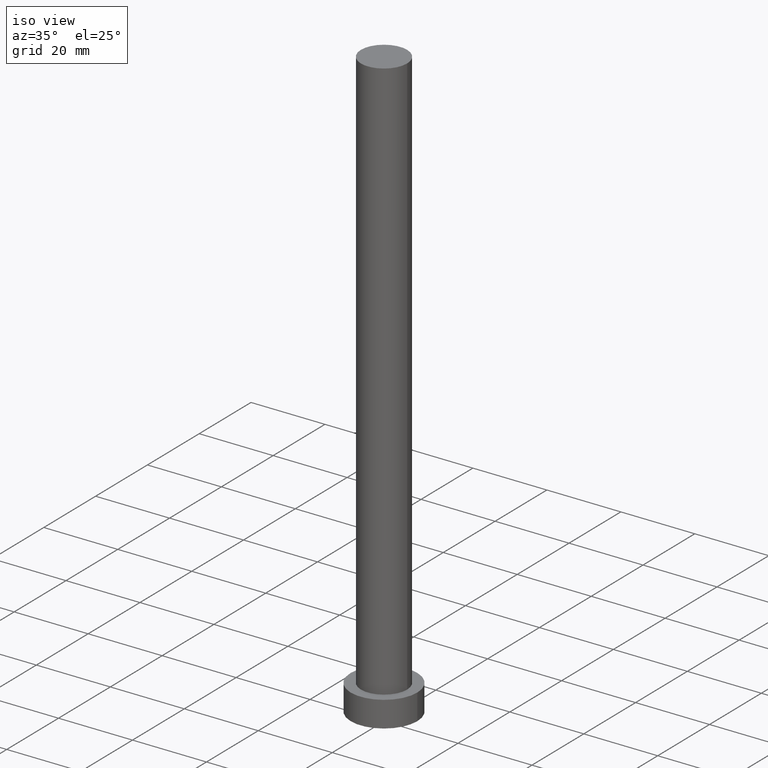
[diagram: clean part render]
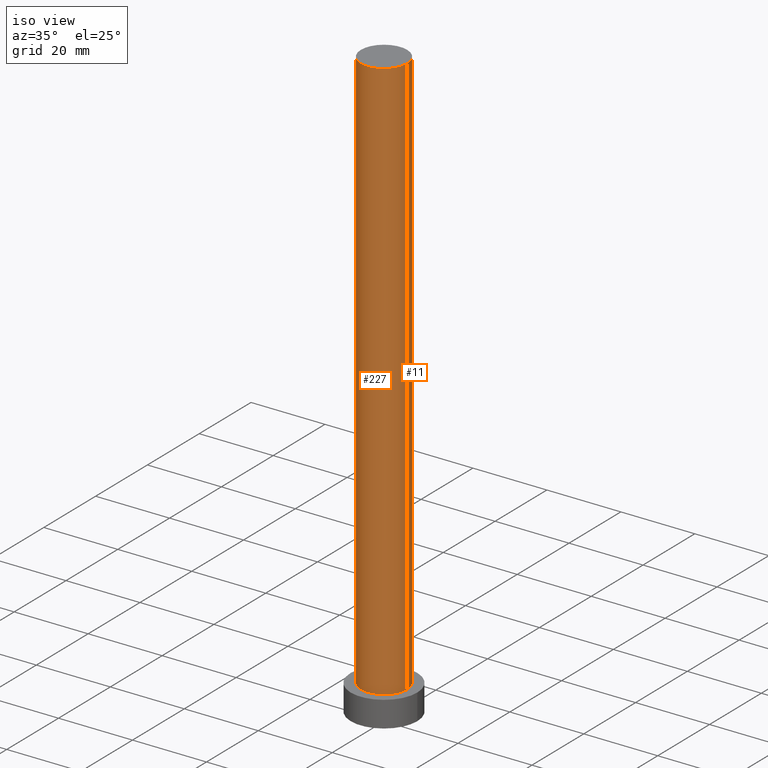
[diagram: same view with one multi-face feature highlighted, each face labeled with its STEP entity id]
A machine part, iso view. The highlighted faces form ONE feature: a constant-radius fillet chain: 2 tangent blend faces with common blend radius 6.25 mm. The faces share edges in the B-rep.
Their STEP definitions:
[1] entity #11 (Cylinder):
#3 = CARTESIAN_POINT ( 'NONE',  ( 6.250000000000000000, 7.654042494670957606E-16, 160.0000000000000000 ) ) ;
#10 = CYLINDRICAL_SURFACE ( 'NONE', #90, 6.250000000000000000 ) ;
#11 = ADVANCED_FACE ( 'NONE', ( #65 ), #10, .T. ) ;
#22 = CARTESIAN_POINT ( 'NONE',  ( -6.250000000000000000, 0.000000000000000000, 160.0000000000000000 ) ) ;
#25 = CIRCLE ( 'NONE', #55, 6.250000000000000000 ) ;
#26 = ORIENTED_EDGE ( 'NONE', *, *, #128, .F. ) ;
#30 = LINE ( 'NONE', #251, #45 ) ;
#33 = LINE ( 'NONE', #193, #123 ) ;
#34 = DIRECTION ( 'NONE',  ( 0.000000000000000000, 0.000000000000000000, 1.000000000000000000 ) ) ;
#45 = VECTOR ( 'NONE', #73, 1000.000000000000000 ) ;
#55 = AXIS2_PLACEMENT_3D ( 'NONE', #148, #34, #129 ) ;
#65 = FACE_OUTER_BOUND ( 'NONE', #78, .T. ) ;
#73 = DIRECTION ( 'NONE',  ( -0.000000000000000000, -0.000000000000000000, -1.000000000000000000 ) ) ;
#74 = VERTEX_POINT ( 'NONE', #189 ) ;
#75 = EDGE_CURVE ( 'NONE', #200, #74, #33, .T. ) ;
#78 = EDGE_LOOP ( 'NONE', ( #115, #155, #141, #26 ) ) ;
#79 = EDGE_CURVE ( 'NONE', #74, #195, #223, .T. ) ;
#87 = EDGE_CURVE ( 'NONE', #200, #243, #25, .T. ) ;
#90 = AXIS2_PLACEMENT_3D ( 'NONE', #105, #199, #201 ) ;
#94 = CARTESIAN_POINT ( 'NONE',  ( -6.250000000000000000, 0.000000000000000000, 7.000000000000000000 ) ) ;
#96 = DIRECTION ( 'NONE',  ( 1.000000000000000000, 0.000000000000000000, 0.000000000000000000 ) ) ;
#105 = CARTESIAN_POINT ( 'NONE',  ( 0.000000000000000000, 0.000000000000000000, 160.0000000000000000 ) ) ;
#115 = ORIENTED_EDGE ( 'NONE', *, *, #87, .F. ) ;
#123 = VECTOR ( 'NONE', #131, 1000.000000000000000 ) ;
#128 = EDGE_CURVE ( 'NONE', #243, #195, #30, .T. ) ;
#129 = DIRECTION ( 'NONE',  ( 1.000000000000000000, 0.000000000000000000, 0.000000000000000000 ) ) ;
#131 = DIRECTION ( 'NONE',  ( -0.000000000000000000, -0.000000000000000000, -1.000000000000000000 ) ) ;
#141 = ORIENTED_EDGE ( 'NONE', *, *, #79, .T. ) ;
#148 = CARTESIAN_POINT ( 'NONE',  ( 0.000000000000000000, 0.000000000000000000, 160.0000000000000000 ) ) ;
#155 = ORIENTED_EDGE ( 'NONE', *, *, #75, .T. ) ;
#168 = CARTESIAN_POINT ( 'NONE',  ( 0.000000000000000000, 0.000000000000000000, 7.000000000000000000 ) ) ;
#189 = CARTESIAN_POINT ( 'NONE',  ( 6.250000000000000000, 7.654042494670957606E-16, 7.000000000000000000 ) ) ;
#193 = CARTESIAN_POINT ( 'NONE',  ( 6.250000000000000000, 7.654042494670957606E-16, 160.0000000000000000 ) ) ;
#195 = VERTEX_POINT ( 'NONE', #94 ) ;
#199 = DIRECTION ( 'NONE',  ( -0.000000000000000000, -0.000000000000000000, -1.000000000000000000 ) ) ;
#200 = VERTEX_POINT ( 'NONE', #3 ) ;
#201 = DIRECTION ( 'NONE',  ( -1.000000000000000000, 0.000000000000000000, 0.000000000000000000 ) ) ;
#223 = CIRCLE ( 'NONE', #249, 6.250000000000000000 ) ;
#234 = DIRECTION ( 'NONE',  ( 0.000000000000000000, 0.000000000000000000, 1.000000000000000000 ) ) ;
#243 = VERTEX_POINT ( 'NONE', #22 ) ;
#249 = AXIS2_PLACEMENT_3D ( 'NONE', #168, #234, #96 ) ;
#251 = CARTESIAN_POINT ( 'NONE',  ( -6.250000000000000000, 0.000000000000000000, 160.0000000000000000 ) ) ;
[2] entity #227 (Cylinder):
#3 = CARTESIAN_POINT ( 'NONE',  ( 6.250000000000000000, 7.654042494670957606E-16, 160.0000000000000000 ) ) ;
#8 = ORIENTED_EDGE ( 'NONE', *, *, #217, .F. ) ;
#19 = CARTESIAN_POINT ( 'NONE',  ( 0.000000000000000000, 0.000000000000000000, 7.000000000000000000 ) ) ;
#22 = CARTESIAN_POINT ( 'NONE',  ( -6.250000000000000000, 0.000000000000000000, 160.0000000000000000 ) ) ;
#27 = CIRCLE ( 'NONE', #173, 6.250000000000000000 ) ;
#30 = LINE ( 'NONE', #251, #45 ) ;
#33 = LINE ( 'NONE', #193, #123 ) ;
#45 = VECTOR ( 'NONE', #73, 1000.000000000000000 ) ;
#48 = DIRECTION ( 'NONE',  ( 0.000000000000000000, 0.000000000000000000, 1.000000000000000000 ) ) ;
#49 = DIRECTION ( 'NONE',  ( -1.000000000000000000, 0.000000000000000000, 0.000000000000000000 ) ) ;
#62 = ORIENTED_EDGE ( 'NONE', *, *, #75, .F. ) ;
#71 = DIRECTION ( 'NONE',  ( 0.000000000000000000, 0.000000000000000000, 1.000000000000000000 ) ) ;
#73 = DIRECTION ( 'NONE',  ( -0.000000000000000000, -0.000000000000000000, -1.000000000000000000 ) ) ;
#74 = VERTEX_POINT ( 'NONE', #189 ) ;
#75 = EDGE_CURVE ( 'NONE', #200, #74, #33, .T. ) ;
#94 = CARTESIAN_POINT ( 'NONE',  ( -6.250000000000000000, 0.000000000000000000, 7.000000000000000000 ) ) ;
#120 = ORIENTED_EDGE ( 'NONE', *, *, #128, .T. ) ;
#123 = VECTOR ( 'NONE', #131, 1000.000000000000000 ) ;
#128 = EDGE_CURVE ( 'NONE', #243, #195, #30, .T. ) ;
#130 = CIRCLE ( 'NONE', #209, 6.250000000000000000 ) ;
#131 = DIRECTION ( 'NONE',  ( -0.000000000000000000, -0.000000000000000000, -1.000000000000000000 ) ) ;
#138 = FACE_OUTER_BOUND ( 'NONE', #181, .T. ) ;
#154 = DIRECTION ( 'NONE',  ( -0.000000000000000000, -0.000000000000000000, -1.000000000000000000 ) ) ;
#164 = AXIS2_PLACEMENT_3D ( 'NONE', #188, #154, #49 ) ;
#169 = ORIENTED_EDGE ( 'NONE', *, *, #182, .T. ) ;
#173 = AXIS2_PLACEMENT_3D ( 'NONE', #19, #48, #213 ) ;
#181 = EDGE_LOOP ( 'NONE', ( #62, #8, #120, #169 ) ) ;
#182 = EDGE_CURVE ( 'NONE', #195, #74, #27, .T. ) ;
#188 = CARTESIAN_POINT ( 'NONE',  ( 0.000000000000000000, 0.000000000000000000, 160.0000000000000000 ) ) ;
#189 = CARTESIAN_POINT ( 'NONE',  ( 6.250000000000000000, 7.654042494670957606E-16, 7.000000000000000000 ) ) ;
#193 = CARTESIAN_POINT ( 'NONE',  ( 6.250000000000000000, 7.654042494670957606E-16, 160.0000000000000000 ) ) ;
#195 = VERTEX_POINT ( 'NONE', #94 ) ;
#200 = VERTEX_POINT ( 'NONE', #3 ) ;
#209 = AXIS2_PLACEMENT_3D ( 'NONE', #255, #71, #236 ) ;
#213 = DIRECTION ( 'NONE',  ( 1.000000000000000000, 0.000000000000000000, 0.000000000000000000 ) ) ;
#217 = EDGE_CURVE ( 'NONE', #243, #200, #130, .T. ) ;
#227 = ADVANCED_FACE ( 'NONE', ( #138 ), #233, .T. ) ;
#233 = CYLINDRICAL_SURFACE ( 'NONE', #164, 6.250000000000000000 ) ;
#236 = DIRECTION ( 'NONE',  ( 1.000000000000000000, 0.000000000000000000, 0.000000000000000000 ) ) ;
#243 = VERTEX_POINT ( 'NONE', #22 ) ;
#251 = CARTESIAN_POINT ( 'NONE',  ( -6.250000000000000000, 0.000000000000000000, 160.0000000000000000 ) ) ;
#255 = CARTESIAN_POINT ( 'NONE',  ( 0.000000000000000000, 0.000000000000000000, 160.0000000000000000 ) ) ;